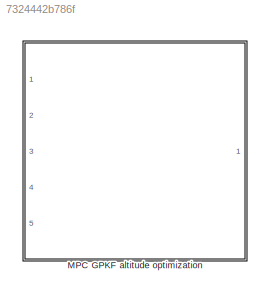
MODEL slx_7324442b786f
KIND library
CONFIG AbsTol = auto
CONFIG EnableMultiTasking = off
CONFIG FixedStep = auto
CONFIG MaxStep = auto
CONFIG MinStep = auto
CONFIG RelTol = 1e-3
CONFIG SampleTimeConstraint = Unconstrained
CONFIG Solver = VariableStepAuto
CONFIG SolverName = VariableStepAuto
CONFIG StartTime = 0.0
CONFIG StopTime = 10.0
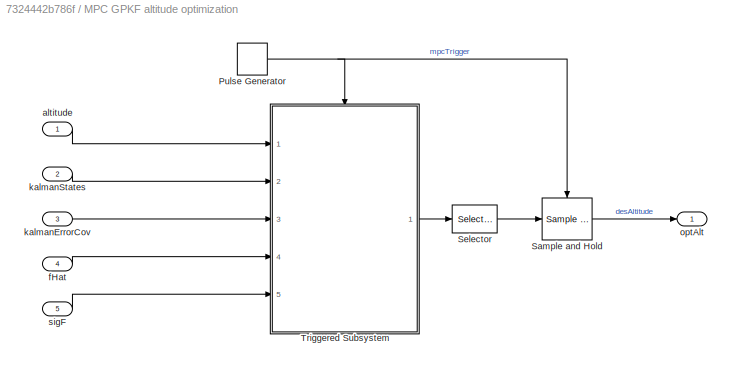
BLOCK [SubSystem] MPC GPKF altitude optimization
  Ports = [5, 1]
  RequestExecContextInheritance = off
BLOCK [DiscretePulseGenerator] MPC GPKF altitude optimization/Pulse Generator
  Period = mpcgpkfTimeStep
  PhaseDelay = mpcgpkfTimeStep
  Ports = [0, 1]
  PulseType = Time based
BLOCK [Reference] MPC GPKF altitude optimization/Sample and Hold  REF=dspsigops/Sample
and Hold
  Ports = [1, 1, 0, 1]
  SourceBlock = dspsigops/Sample\nand Hold
  SourceProductBaseCode = DS
  SourceType = Sample and Hold
BLOCK [Selector] MPC GPKF altitude optimization/Selector
  IndexOptions = Index vector (dialog)
  Indices = 1
  InputPortWidth = nPred
  OutputSizes = 1
  Ports = [1, 1]
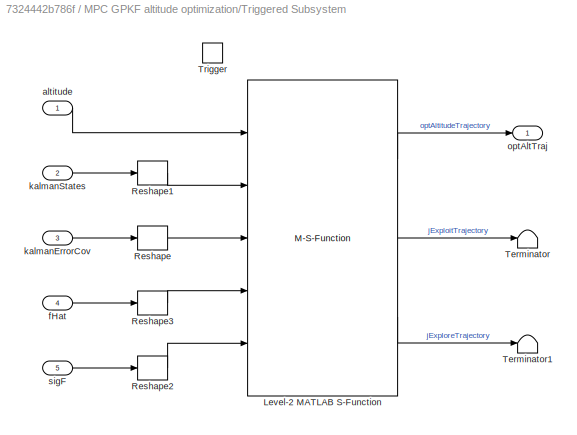
BLOCK [SubSystem] MPC GPKF altitude optimization/Triggered Subsystem
  Ports = [5, 1, 0, 1]
  RequestExecContextInheritance = off
  TreatAsAtomicUnit = on
BLOCK [M-S-Function] MPC GPKF altitude optimization/Triggered Subsystem/Level-2 MATLAB S-Function
  FunctionName = altOptMPC_level2SFunc
  Parameters = Amat,Qmat,Hmat,Rmat,Ks,Ks12,covAmp,spatialScale,xMeasure,powerLawParams,nPred,zMin,zMax,zStepMax,tradeoffCons
  Ports = [5, 3]
BLOCK [Reshape] MPC GPKF altitude optimization/Triggered Subsystem/Reshape
  Ports = [1, 1]
BLOCK [Reshape] MPC GPKF altitude optimization/Triggered Subsystem/Reshape1
  Ports = [1, 1]
BLOCK [Reshape] MPC GPKF altitude optimization/Triggered Subsystem/Reshape2
  Ports = [1, 1]
BLOCK [Reshape] MPC GPKF altitude optimization/Triggered Subsystem/Reshape3
  Ports = [1, 1]
BLOCK [Terminator] MPC GPKF altitude optimization/Triggered Subsystem/Terminator
BLOCK [Terminator] MPC GPKF altitude optimization/Triggered Subsystem/Terminator1
BLOCK [TriggerPort] MPC GPKF altitude optimization/Triggered Subsystem/Trigger
  Ports = []
  StatesWhenEnabling = held
  VariantControl = Variant
BLOCK [Inport] MPC GPKF altitude optimization/Triggered Subsystem/altitude
BLOCK [Inport] MPC GPKF altitude optimization/Triggered Subsystem/fHat
  Port = 4
BLOCK [Inport] MPC GPKF altitude optimization/Triggered Subsystem/kalmanErrorCov
  Port = 3
BLOCK [Inport] MPC GPKF altitude optimization/Triggered Subsystem/kalmanStates
  Port = 2
BLOCK [Outport] MPC GPKF altitude optimization/Triggered Subsystem/optAltTraj
BLOCK [Inport] MPC GPKF altitude optimization/Triggered Subsystem/sigF
  Port = 5
BLOCK [Inport] MPC GPKF altitude optimization/altitude
BLOCK [Inport] MPC GPKF altitude optimization/fHat
  Port = 4
BLOCK [Inport] MPC GPKF altitude optimization/kalmanErrorCov
  Port = 3
BLOCK [Inport] MPC GPKF altitude optimization/kalmanStates
  Port = 2
BLOCK [Outport] MPC GPKF altitude optimization/optAlt
BLOCK [Inport] MPC GPKF altitude optimization/sigF
  Port = 5
NET MPC GPKF altitude optimization/Pulse Generator:1 -> MPC GPKF altitude optimization/Sample and Hold:trigger, MPC GPKF altitude optimization/Triggered Subsystem:trigger
LINE MPC GPKF altitude optimization/Sample and Hold:1 -> MPC GPKF altitude optimization/optAlt:1
LINE MPC GPKF altitude optimization/Selector:1 -> MPC GPKF altitude optimization/Sample and Hold:1
LINE MPC GPKF altitude optimization/Triggered Subsystem/Level-2 MATLAB S-Function:1 -> MPC GPKF altitude optimization/Triggered Subsystem/optAltTraj:1
LINE MPC GPKF altitude optimization/Triggered Subsystem/Level-2 MATLAB S-Function:2 -> MPC GPKF altitude optimization/Triggered Subsystem/Terminator:1
LINE MPC GPKF altitude optimization/Triggered Subsystem/Level-2 MATLAB S-Function:3 -> MPC GPKF altitude optimization/Triggered Subsystem/Terminator1:1
LINE MPC GPKF altitude optimization/Triggered Subsystem/Reshape1:1 -> MPC GPKF altitude optimization/Triggered Subsystem/Level-2 MATLAB S-Function:2
LINE MPC GPKF altitude optimization/Triggered Subsystem/Reshape2:1 -> MPC GPKF altitude optimization/Triggered Subsystem/Level-2 MATLAB S-Function:5
LINE MPC GPKF altitude optimization/Triggered Subsystem/Reshape3:1 -> MPC GPKF altitude optimization/Triggered Subsystem/Level-2 MATLAB S-Function:4
LINE MPC GPKF altitude optimization/Triggered Subsystem/Reshape:1 -> MPC GPKF altitude optimization/Triggered Subsystem/Level-2 MATLAB S-Function:3
LINE MPC GPKF altitude optimization/Triggered Subsystem/altitude:1 -> MPC GPKF altitude optimization/Triggered Subsystem/Level-2 MATLAB S-Function:1
LINE MPC GPKF altitude optimization/Triggered Subsystem/fHat:1 -> MPC GPKF altitude optimization/Triggered Subsystem/Reshape3:1
LINE MPC GPKF altitude optimization/Triggered Subsystem/kalmanErrorCov:1 -> MPC GPKF altitude optimization/Triggered Subsystem/Reshape:1
LINE MPC GPKF altitude optimization/Triggered Subsystem/kalmanStates:1 -> MPC GPKF altitude optimization/Triggered Subsystem/Reshape1:1
LINE MPC GPKF altitude optimization/Triggered Subsystem/sigF:1 -> MPC GPKF altitude optimization/Triggered Subsystem/Reshape2:1
LINE MPC GPKF altitude optimization/Triggered Subsystem:1 -> MPC GPKF altitude optimization/Selector:1
LINE MPC GPKF altitude optimization/altitude:1 -> MPC GPKF altitude optimization/Triggered Subsystem:1
LINE MPC GPKF altitude optimization/fHat:1 -> MPC GPKF altitude optimization/Triggered Subsystem:4
LINE MPC GPKF altitude optimization/kalmanErrorCov:1 -> MPC GPKF altitude optimization/Triggered Subsystem:3
LINE MPC GPKF altitude optimization/kalmanStates:1 -> MPC GPKF altitude optimization/Triggered Subsystem:2
LINE MPC GPKF altitude optimization/sigF:1 -> MPC GPKF altitude optimization/Triggered Subsystem:5
note: NET lines group one-source signal fan-out (src -> all destinations, sorted); 1:1 wires keep LINE
